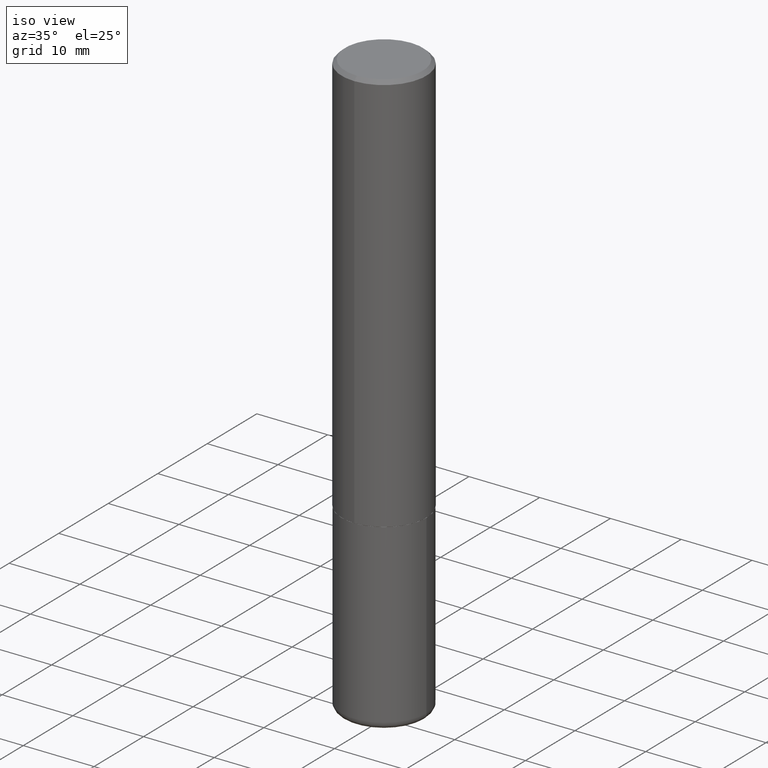
[diagram: clean part render]
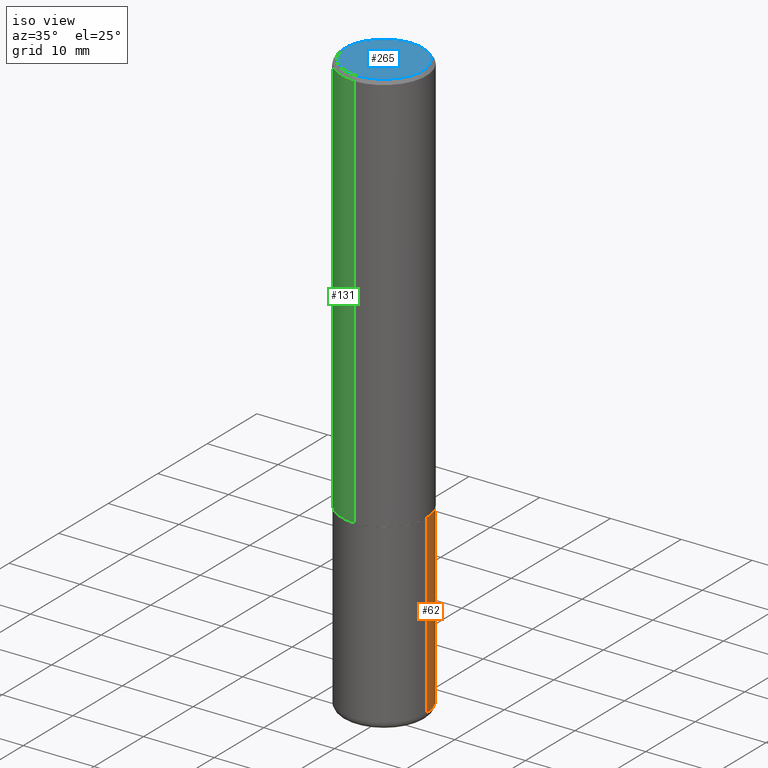
[diagram: same view with three faces highlighted in distinct colors, each labeled with its STEP entity id]
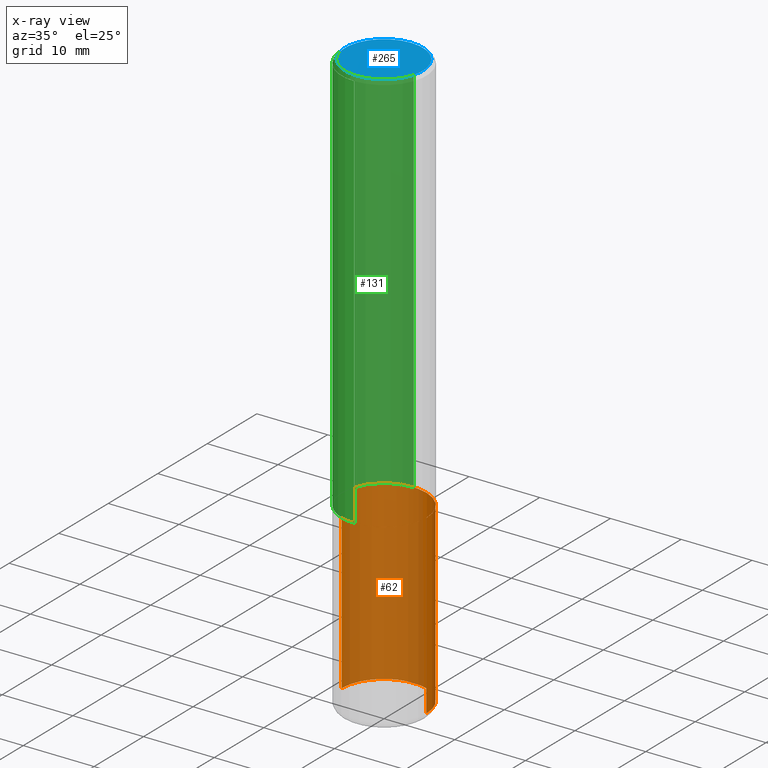
[diagram: x-ray of the same camera — body ghosted, the three highlighted faces saturated]
A machine part, iso view with three faces highlighted in distinct colors.
The next image is the same camera in x-ray (body ghosted, the three faces saturated) — at least one of them is partly hidden behind the body in this view.
Their STEP definitions:

[orange] entity #62 — the highlighted cylindrical surface (partial cylindrical patch) has radius 5.9995 mm, axis along (-0, 0, 1).
#1 = EDGE_CURVE ( 'NONE', #215, #292, #14, .T. ) ;
#2 = CARTESIAN_POINT ( 'NONE',  ( 5.487876547960065873E-29, -7.835233272497903917E-15, -2.244100000000000428 ) ) ;
#5 = DIRECTION ( 'NONE',  ( -2.445468806185136877E-29, 3.491481338843145188E-15, 1.000000000000000000 ) ) ;
#14 = LINE ( 'NONE', #302, #70 ) ;
#16 = AXIS2_PLACEMENT_3D ( 'NONE', #193, #225, #405 ) ;
#21 = ORIENTED_EDGE ( 'NONE', *, *, #358, .F. ) ;
#48 = VERTEX_POINT ( 'NONE', #275 ) ;
#55 = CARTESIAN_POINT ( 'NONE',  ( -0.2362000000000001321, -9.593247264321970832E-15, -3.228299999999999947 ) ) ;
#62 = ADVANCED_FACE ( 'NONE', ( #84 ), #375, .T. ) ;
#64 = CARTESIAN_POINT ( 'NONE',  ( 0.2362000000000001321, -1.292092499065682533E-14, -3.228299999999999947 ) ) ;
#65 = VECTOR ( 'NONE', #262, 39.37007874015748143 ) ;
#70 = VECTOR ( 'NONE', #5, 39.37007874015748143 ) ;
#77 = DIRECTION ( 'NONE',  ( 1.000000000000000000, -6.982962677686268288E-15, 0.000000000000000000 ) ) ;
#84 = FACE_OUTER_BOUND ( 'NONE', #147, .T. ) ;
#101 = EDGE_CURVE ( 'NONE', #157, #48, #161, .T. ) ;
#106 = CARTESIAN_POINT ( 'NONE',  ( 7.894706947007477118E-29, -1.127154920618732880E-14, -3.228299999999999947 ) ) ;
#133 = CIRCLE ( 'NONE', #267, 0.2361999999999999655 ) ;
#140 = DIRECTION ( 'NONE',  ( -2.445468806185136597E-29, 3.491481338843145583E-15, 1.000000000000000000 ) ) ;
#145 = CARTESIAN_POINT ( 'NONE',  ( -0.2362000000000000766, -7.875089297477259967E-15, -2.244100000000000428 ) ) ;
#147 = EDGE_LOOP ( 'NONE', ( #335, #148, #21, #307 ) ) ;
#148 = ORIENTED_EDGE ( 'NONE', *, *, #1, .T. ) ;
#157 = VERTEX_POINT ( 'NONE', #64 ) ;
#161 = LINE ( 'NONE', #255, #65 ) ;
#193 = CARTESIAN_POINT ( 'NONE',  ( 0.000000000000000000, 0.000000000000000000, 0.000000000000000000 ) ) ;
#215 = VERTEX_POINT ( 'NONE', #55 ) ;
#225 = DIRECTION ( 'NONE',  ( -2.445468806185136597E-29, 3.491481338843145583E-15, 1.000000000000000000 ) ) ;
#229 = AXIS2_PLACEMENT_3D ( 'NONE', #2, #140, #77 ) ;
#255 = CARTESIAN_POINT ( 'NONE',  ( 0.2361999999999999933, -1.649375784469496131E-15, 1.151752954443000088E-29 ) ) ;
#262 = DIRECTION ( 'NONE',  ( -2.445468806185136877E-29, 3.491481338843145188E-15, 1.000000000000000000 ) ) ;
#267 = AXIS2_PLACEMENT_3D ( 'NONE', #106, #276, #361 ) ;
#275 = CARTESIAN_POINT ( 'NONE',  ( 0.2362000000000000210, -9.484609056967400443E-15, -2.244100000000000428 ) ) ;
#276 = DIRECTION ( 'NONE',  ( -2.445468806185136597E-29, 3.491481338843145583E-15, 1.000000000000000000 ) ) ;
#292 = VERTEX_POINT ( 'NONE', #145 ) ;
#301 = EDGE_CURVE ( 'NONE', #157, #215, #133, .T. ) ;
#302 = CARTESIAN_POINT ( 'NONE',  ( -0.2361999999999999933, 1.678301941865356591E-15, -1.161852468318208757E-29 ) ) ;
#307 = ORIENTED_EDGE ( 'NONE', *, *, #101, .F. ) ;
#335 = ORIENTED_EDGE ( 'NONE', *, *, #301, .T. ) ;
#340 = CIRCLE ( 'NONE', #229, 0.2362000000000000210 ) ;
#358 = EDGE_CURVE ( 'NONE', #48, #292, #340, .T. ) ;
#361 = DIRECTION ( 'NONE',  ( 1.000000000000000000, -6.982962677686265922E-15, 0.000000000000000000 ) ) ;
#375 = CYLINDRICAL_SURFACE ( 'NONE', #16, 0.2361999999999999933 ) ;
#405 = DIRECTION ( 'NONE',  ( 1.000000000000000000, -6.982962677686266711E-15, 4.876176775795936353E-29 ) ) ;

[blue] entity #265 — the highlighted planar face has unit normal (0, -0, -1).
#19 = ORIENTED_EDGE ( 'NONE', *, *, #210, .T. ) ;
#23 = CARTESIAN_POINT ( 'NONE',  ( 7.178715118017931868E-45, -1.026837905226585320E-30, -2.938244667971532280E-16 ) ) ;
#56 = EDGE_LOOP ( 'NONE', ( #19, #263 ) ) ;
#119 = VERTEX_POINT ( 'NONE', #287 ) ;
#124 = DIRECTION ( 'NONE',  ( -2.443198551934710321E-29, 3.494732472144603410E-15, 1.000000000000000000 ) ) ;
#125 = VERTEX_POINT ( 'NONE', #378 ) ;
#129 = DIRECTION ( 'NONE',  ( 6.982962677686265922E-15, 1.000000000000000000, -3.494732472144603016E-15 ) ) ;
#132 = PLANE ( 'NONE',  #299 ) ;
#165 = EDGE_CURVE ( 'NONE', #119, #125, #240, .T. ) ;
#173 = AXIS2_PLACEMENT_3D ( 'NONE', #408, #124, #341 ) ;
#198 = CARTESIAN_POINT ( 'NONE',  ( 1.509716530915772690E-15, 0.2162000000000002808, -9.024733938762408486E-16 ) ) ;
#210 = EDGE_CURVE ( 'NONE', #125, #119, #381, .T. ) ;
#233 = FACE_OUTER_BOUND ( 'NONE', #56, .T. ) ;
#235 = AXIS2_PLACEMENT_3D ( 'NONE', #23, #252, #369 ) ;
#240 = CIRCLE ( 'NONE', #235, 0.2162000000000002808 ) ;
#252 = DIRECTION ( 'NONE',  ( -2.443198551934710321E-29, 3.494732472144603410E-15, 1.000000000000000000 ) ) ;
#263 = ORIENTED_EDGE ( 'NONE', *, *, #165, .T. ) ;
#265 = ADVANCED_FACE ( 'NONE', ( #233 ), #132, .F. ) ;
#269 = DIRECTION ( 'NONE',  ( 2.443198551934710321E-29, -3.494732472144603016E-15, -1.000000000000000000 ) ) ;
#287 = CARTESIAN_POINT ( 'NONE',  ( -1.551844647095920733E-15, -0.2162000000000002808, 4.617366936805109079E-16 ) ) ;
#299 = AXIS2_PLACEMENT_3D ( 'NONE', #198, #269, #129 ) ;
#341 = DIRECTION ( 'NONE',  ( -6.982962677686265922E-15, -1.000000000000000000, 3.494732472144603410E-15 ) ) ;
#369 = DIRECTION ( 'NONE',  ( -6.982962677686265922E-15, -1.000000000000000000, 3.494732472144603410E-15 ) ) ;
#378 = CARTESIAN_POINT ( 'NONE',  ( 1.579546157692634608E-15, 0.2162000000000002808, -1.049385627274817561E-15 ) ) ;
#381 = CIRCLE ( 'NONE', #173, 0.2162000000000002808 ) ;
#408 = CARTESIAN_POINT ( 'NONE',  ( 7.178715118017931868E-45, -1.026837905226585320E-30, -2.938244667971532280E-16 ) ) ;

[green] entity #131 — the highlighted cylindrical surface (partial cylindrical patch) has radius 5.9995 mm, axis along (-0, 0, 1).
#13 = CARTESIAN_POINT ( 'NONE',  ( 1.649375784469496525E-15, 0.2361999999999999378, -0.02000000000000091288 ) ) ;
#15 = CARTESIAN_POINT ( 'NONE',  ( 4.886397103869442398E-31, -6.989464944289237832E-17, -0.02000000000000009062 ) ) ;
#28 = EDGE_CURVE ( 'NONE', #363, #151, #164, .T. ) ;
#37 = EDGE_CURVE ( 'NONE', #138, #151, #50, .T. ) ;
#47 = ORIENTED_EDGE ( 'NONE', *, *, #37, .T. ) ;
#50 = LINE ( 'NONE', #185, #250 ) ;
#51 = AXIS2_PLACEMENT_3D ( 'NONE', #69, #241, #273 ) ;
#58 = CARTESIAN_POINT ( 'NONE',  ( 1.678301941865357380E-15, 0.2362000000000001321, -8.254558099205557624E-16 ) ) ;
#69 = CARTESIAN_POINT ( 'NONE',  ( 5.480338671844748839E-29, -7.839034408267561952E-15, -2.243100000000000094 ) ) ;
#76 = ORIENTED_EDGE ( 'NONE', *, *, #338, .T. ) ;
#93 = CYLINDRICAL_SURFACE ( 'NONE', #206, 0.2362000000000001321 ) ;
#118 = DIRECTION ( 'NONE',  ( -2.443198551934710321E-29, 3.494732472144603410E-15, 1.000000000000000000 ) ) ;
#131 = ADVANCED_FACE ( 'NONE', ( #223 ), #93, .T. ) ;
#138 = VERTEX_POINT ( 'NONE', #231 ) ;
#146 = DIRECTION ( 'NONE',  ( -2.443198551934710321E-29, 3.494732472144603016E-15, 1.000000000000000000 ) ) ;
#151 = VERTEX_POINT ( 'NONE', #351 ) ;
#160 = DIRECTION ( 'NONE',  ( -2.443198551934710321E-29, 3.494732472144603016E-15, 1.000000000000000000 ) ) ;
#164 = CIRCLE ( 'NONE', #289, 0.2361999999999999933 ) ;
#179 = VECTOR ( 'NONE', #160, 39.37007874015748143 ) ;
#185 = CARTESIAN_POINT ( 'NONE',  ( -1.649375784469496920E-15, -0.2362000000000001321, 8.254558099205557624E-16 ) ) ;
#204 = EDGE_CURVE ( 'NONE', #303, #363, #219, .T. ) ;
#206 = AXIS2_PLACEMENT_3D ( 'NONE', #346, #118, #399 ) ;
#219 = LINE ( 'NONE', #58, #179 ) ;
#223 = FACE_OUTER_BOUND ( 'NONE', #244, .T. ) ;
#231 = CARTESIAN_POINT ( 'NONE',  ( -1.649375784469443080E-15, -0.2362000000000081257, -2.243099999999999206 ) ) ;
#241 = DIRECTION ( 'NONE',  ( -2.443198551934710321E-29, 3.494732472144603410E-15, 1.000000000000000000 ) ) ;
#244 = EDGE_LOOP ( 'NONE', ( #288, #76, #47, #321 ) ) ;
#250 = VECTOR ( 'NONE', #146, 39.37007874015748143 ) ;
#271 = CARTESIAN_POINT ( 'NONE',  ( 1.678301941865385582E-15, 0.2361999999999924160, -2.243100000000000982 ) ) ;
#273 = DIRECTION ( 'NONE',  ( -6.982962677686265922E-15, -1.000000000000000000, 3.469747663417773058E-15 ) ) ;
#277 = DIRECTION ( 'NONE',  ( -2.443198551934710321E-29, 3.494732472144603410E-15, 1.000000000000000000 ) ) ;
#288 = ORIENTED_EDGE ( 'NONE', *, *, #204, .F. ) ;
#289 = AXIS2_PLACEMENT_3D ( 'NONE', #15, #277, #337 ) ;
#303 = VERTEX_POINT ( 'NONE', #271 ) ;
#321 = ORIENTED_EDGE ( 'NONE', *, *, #28, .F. ) ;
#337 = DIRECTION ( 'NONE',  ( -6.982962677686265922E-15, -1.000000000000000000, 3.487819265831411744E-15 ) ) ;
#338 = EDGE_CURVE ( 'NONE', #303, #138, #413, .T. ) ;
#346 = CARTESIAN_POINT ( 'NONE',  ( 0.000000000000000000, 0.000000000000000000, 0.000000000000000000 ) ) ;
#351 = CARTESIAN_POINT ( 'NONE',  ( -1.620449627073635079E-15, -0.2362000000000000766, -0.01999999999999926489 ) ) ;
#363 = VERTEX_POINT ( 'NONE', #13 ) ;
#399 = DIRECTION ( 'NONE',  ( -6.982962677686265922E-15, -1.000000000000000000, 3.494732472144603410E-15 ) ) ;
#413 = CIRCLE ( 'NONE', #51, 0.2362000000000002709 ) ;